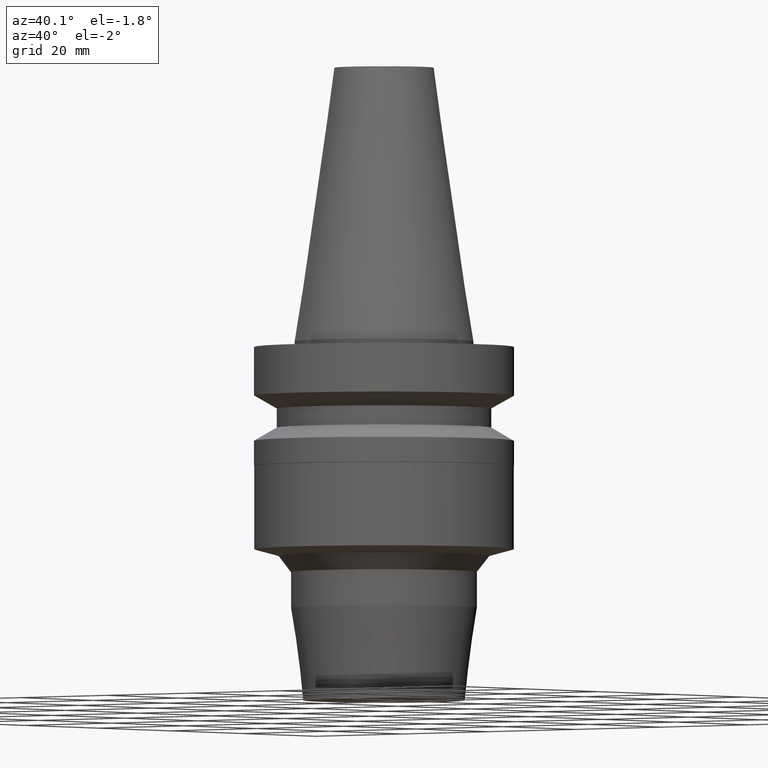
[diagram: clean part render]
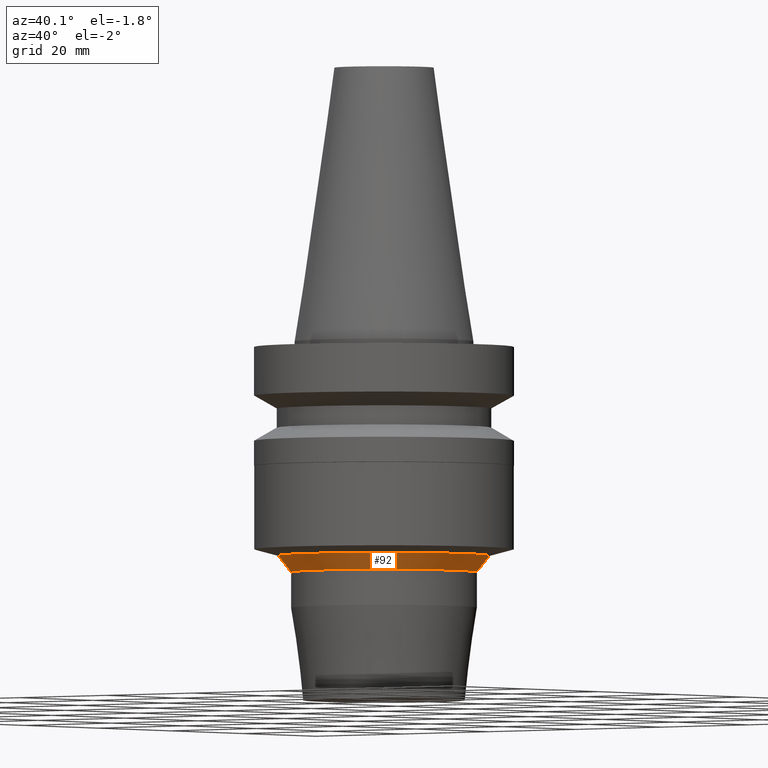
[diagram: same view with one face highlighted and labeled with its STEP entity id]
A machine part, auxiliary view. The second image highlights one B-rep face of the part: STEP entity #92.
In plain terms, the highlighted conical surface has half-angle 37.5 deg.
Its self-contained STEP definition (entity closure, byte-faithful):
#84=EDGE_CURVE('Unnamed[1]',#195,#195,#196,.T.);
#92=ADVANCED_FACE('Unnamed[1]',(#207,#208),#209,.T.);
#135=EDGE_CURVE('Unnamed[1]',#276,#276,#277,.T.);
#195=VERTEX_POINT('',#338);
#196=CIRCLE('',#339,16.5000000000001);
#207=FACE_BOUND('',#353,.T.);
#208=FACE_BOUND('',#354,.T.);
#209=CONICAL_SURFACE('',#355,17.6117714323463,0.654498469497864);
#276=VERTEX_POINT('',#439);
#277=CIRCLE('',#440,18.7235428646925);
#338=CARTESIAN_POINT('',(2.50013194786286E-015,16.5000000000001,-40.8302532551189));
#339=AXIS2_PLACEMENT_3D('',#487,#488,#489);
#353=EDGE_LOOP('',(#500));
#354=EDGE_LOOP('',(#501));
#355=AXIS2_PLACEMENT_3D('',#502,#503,#504);
#439=CARTESIAN_POINT('',(2.32269425215606E-015,18.7235428646925,-37.9324757762517));
#440=AXIS2_PLACEMENT_3D('',#579,#580,#581);
#487=CARTESIAN_POINT('',(2.50013194786286E-015,5.00026389572571E-015,-40.8302532551189));
#488=DIRECTION('',(6.12323399573677E-017,1.22464679914735E-016,-1.0));
#489=DIRECTION('',(-1.23259516440783E-032,1.0,1.22464679914735E-016));
#500=ORIENTED_EDGE('',*,*,#84,.F.);
#501=ORIENTED_EDGE('',*,*,#135,.T.);
#502=CARTESIAN_POINT('',(2.41141310000946E-015,4.82282620001891E-015,-39.3813645156853));
#503=DIRECTION('',(-6.12323399573677E-017,-1.22464679914735E-016,1.0));
#504=DIRECTION('',(-1.23259516440783E-032,1.0,1.22464679914735E-016));
#579=CARTESIAN_POINT('',(2.32269425215606E-015,4.64538850431211E-015,-37.9324757762517));
#580=DIRECTION('',(6.12323399573677E-017,1.22464679914735E-016,-1.0));
#581=DIRECTION('',(-1.23259516440783E-032,1.0,1.22464679914735E-016));